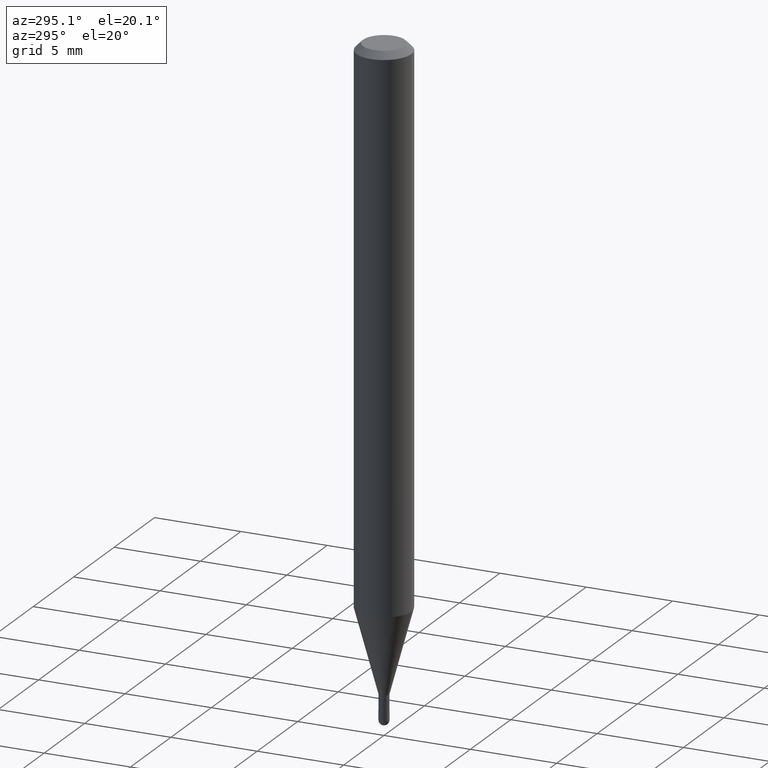
[diagram: clean part render]
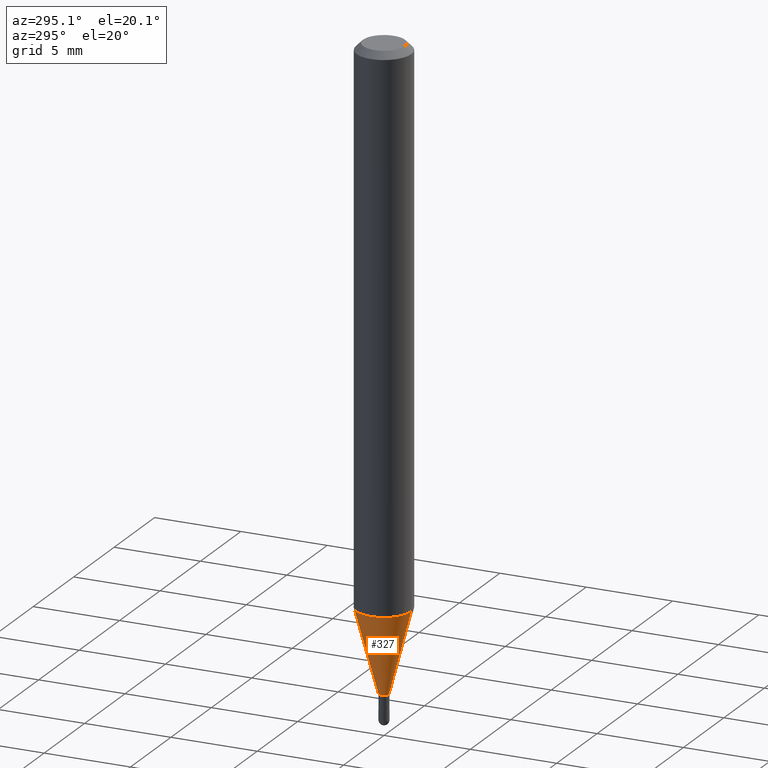
[diagram: same view with one face highlighted and labeled with its STEP entity id]
A machine part, auxiliary view. The second image highlights one B-rep face of the part: STEP entity #327.
In plain terms, the highlighted conical surface has half-angle 15 deg.
Its self-contained STEP definition (entity closure, byte-faithful):
#5 = CARTESIAN_POINT ( 'NONE',  ( -4.364351673553613969E-16, -0.06250000000000432987, -1.240665408813993009 ) ) ;
#17 = ORIENTED_EDGE ( 'NONE', *, *, #120, .F. ) ;
#28 = DIRECTION ( 'NONE',  ( -2.445482672155709146E-29, 3.491461481984083655E-15, 1.000000000000000000 ) ) ;
#48 = CONICAL_SURFACE ( 'NONE', #279, 0.01149999999999992521, 0.2617993877991575125 ) ;
#67 = AXIS2_PLACEMENT_3D ( 'NONE', #229, #509, #401 ) ;
#120 = EDGE_CURVE ( 'NONE', #368, #476, #329, .T. ) ;
#132 = ORIENTED_EDGE ( 'NONE', *, *, #506, .F. ) ;
#140 = DIRECTION ( 'NONE',  ( 1.839019923739649619E-15, 0.2588190451025318972, 0.9659258262890650926 ) ) ;
#152 = VECTOR ( 'NONE', #140, 39.37007874015748854 ) ;
#182 = LINE ( 'NONE', #185, #308 ) ;
#185 = CARTESIAN_POINT ( 'NONE',  ( -8.030407079335653737E-17, -0.01150000000000492122, -1.431000000000000050 ) ) ;
#199 = EDGE_CURVE ( 'NONE', #274, #464, #182, .T. ) ;
#225 = CARTESIAN_POINT ( 'NONE',  ( 2.629008122312695963E-16, 0.01149999999999492921, -1.431000000000000050 ) ) ;
#229 = CARTESIAN_POINT ( 'NONE',  ( 3.499485703854820099E-29, -4.996281380719223965E-15, -1.431000000000000050 ) ) ;
#241 = CARTESIAN_POINT ( 'NONE',  ( 3.034025759197599694E-29, -4.331735486904094553E-15, -1.240665408813993231 ) ) ;
#250 = ORIENTED_EDGE ( 'NONE', *, *, #381, .T. ) ;
#274 = VERTEX_POINT ( 'NONE', #505 ) ;
#279 = AXIS2_PLACEMENT_3D ( 'NONE', #363, #445, #312 ) ;
#308 = VECTOR ( 'NONE', #507, 39.37007874015748854 ) ;
#310 = EDGE_LOOP ( 'NONE', ( #17, #250, #413, #132 ) ) ;
#312 = DIRECTION ( 'NONE',  ( -6.982962677686266711E-15, -1.000000000000000000, 0.000000000000000000 ) ) ;
#327 = ADVANCED_FACE ( 'NONE', ( #345 ), #48, .T. ) ;
#329 = LINE ( 'NONE', #493, #152 ) ;
#334 = CARTESIAN_POINT ( 'NONE',  ( 4.440892098500927901E-16, 0.06249999999999567013, -1.240665408813993453 ) ) ;
#339 = AXIS2_PLACEMENT_3D ( 'NONE', #241, #28, #455 ) ;
#345 = FACE_OUTER_BOUND ( 'NONE', #310, .T. ) ;
#363 = CARTESIAN_POINT ( 'NONE',  ( 3.499485703854820099E-29, -4.996281380719223965E-15, -1.431000000000000050 ) ) ;
#368 = VERTEX_POINT ( 'NONE', #225 ) ;
#371 = CIRCLE ( 'NONE', #67, 0.01149999999999992521 ) ;
#381 = EDGE_CURVE ( 'NONE', #368, #274, #371, .T. ) ;
#383 = CIRCLE ( 'NONE', #339, 0.06250000000000000000 ) ;
#401 = DIRECTION ( 'NONE',  ( -6.982962677686266711E-15, -1.000000000000000000, 0.000000000000000000 ) ) ;
#413 = ORIENTED_EDGE ( 'NONE', *, *, #199, .T. ) ;
#445 = DIRECTION ( 'NONE',  ( -2.445482672155709146E-29, 3.491461481984083655E-15, 1.000000000000000000 ) ) ;
#455 = DIRECTION ( 'NONE',  ( -6.982962677686265922E-15, -1.000000000000000000, 4.370956789862821150E-15 ) ) ;
#464 = VERTEX_POINT ( 'NONE', #5 ) ;
#476 = VERTEX_POINT ( 'NONE', #334 ) ;
#493 = CARTESIAN_POINT ( 'NONE',  ( 8.171241461244598336E-17, 0.01149999999999492921, -1.431000000000000050 ) ) ;
#505 = CARTESIAN_POINT ( 'NONE',  ( -8.030407079335653737E-17, -0.01150000000000492122, -1.431000000000000050 ) ) ;
#506 = EDGE_CURVE ( 'NONE', #476, #464, #383, .T. ) ;
#507 = DIRECTION ( 'NONE',  ( -1.807323732225379049E-15, -0.2588190451025252359, 0.9659258262890670910 ) ) ;
#509 = DIRECTION ( 'NONE',  ( -2.445482672155709146E-29, 3.491461481984083655E-15, 1.000000000000000000 ) ) ;